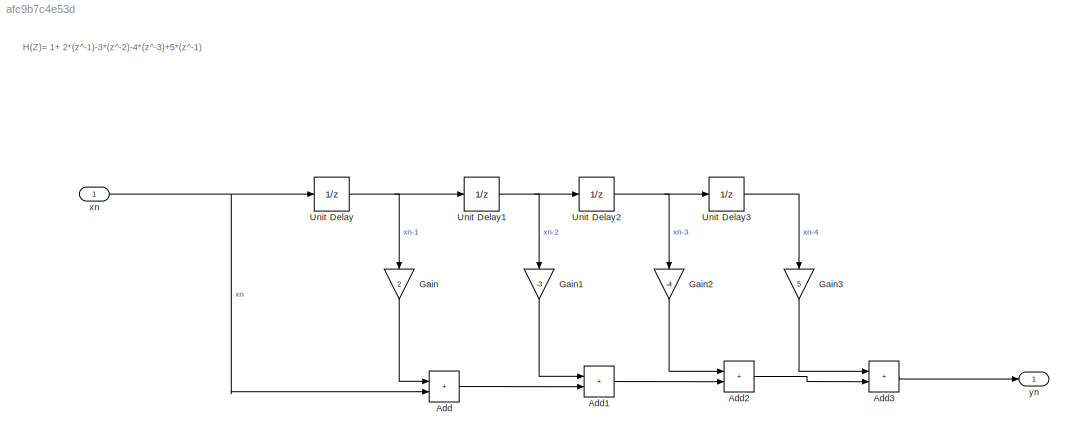
MODEL slx_afc9b7c4e53d
KIND model
CONFIG AbsTol = auto
CONFIG EnableMultiTasking = off
CONFIG FixedStep = 0.2
CONFIG MaxStep = auto
CONFIG MinStep = auto
CONFIG RelTol = 1e-3
CONFIG SampleTimeConstraint = Unconstrained
CONFIG SolverName = FixedStepAuto
CONFIG StartTime = 0.0
CONFIG StopTime = 10.0
BLOCK [Sum] Add
  IconShape = rectangular
  Ports = [2, 1]
BLOCK [Sum] Add1
  IconShape = rectangular
  Ports = [2, 1]
BLOCK [Sum] Add2
  IconShape = rectangular
  Ports = [2, 1]
BLOCK [Sum] Add3
  IconShape = rectangular
  Ports = [2, 1]
BLOCK [Gain] Gain
  Gain = 2
  NameLocation = left
BLOCK [Gain] Gain1
  Gain = -3
  NameLocation = left
BLOCK [Gain] Gain2
  Gain = -4
  NameLocation = left
BLOCK [Gain] Gain3
  Gain = 5
  NameLocation = left
BLOCK [UnitDelay] Unit Delay
  HasFrameUpgradeWarning = on
  SampleTime = -1
BLOCK [UnitDelay] Unit Delay1
  HasFrameUpgradeWarning = on
  SampleTime = -1
BLOCK [UnitDelay] Unit Delay2
  HasFrameUpgradeWarning = on
  SampleTime = -1
BLOCK [UnitDelay] Unit Delay3
  HasFrameUpgradeWarning = on
  SampleTime = -1
BLOCK [Inport] xn
  OutDataTypeStr = double
  PortDimensions = 1
  SampleTime = [0.20000000000000001,0]
  SamplingMode = Sample based
  SignalType = real
BLOCK [Outport] yn
  OutDataTypeStr = double
  PortDimensions = 1
  SampleTime = [0.20000000000000001,0]
  SamplingMode = Sample based
  SignalType = real
ANNOTATION (root): H(Z)= 1+ 2*(z^-1)-3*(z^-2)-4*(z^-3)+5*(z^-1)
LINE Add1:1 -> Add2:2
LINE Add2:1 -> Add3:2
LINE Add3:1 -> yn:1
LINE Add:1 -> Add1:2
LINE Gain1:1 -> Add1:1
LINE Gain2:1 -> Add2:1
LINE Gain3:1 -> Add3:1
LINE Gain:1 -> Add:1
NET Unit Delay1:1 -> Gain1:1, Unit Delay2:1
NET Unit Delay2:1 -> Gain2:1, Unit Delay3:1
LINE Unit Delay3:1 -> Gain3:1
NET Unit Delay:1 -> Gain:1, Unit Delay1:1
NET xn:1 -> Add:2, Unit Delay:1
note: NET lines group one-source signal fan-out (src -> all destinations, sorted); 1:1 wires keep LINE
